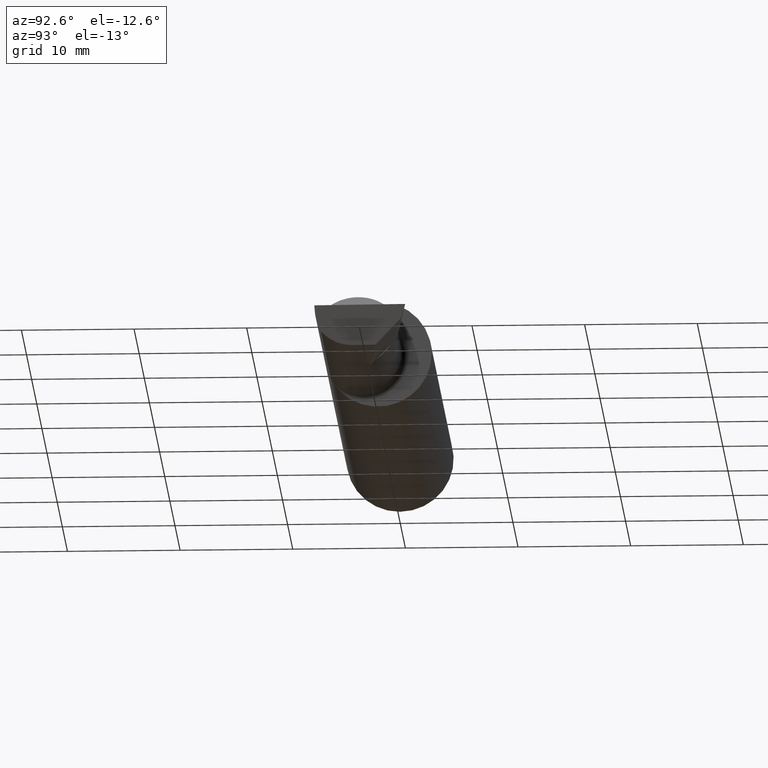
[diagram: clean part render]
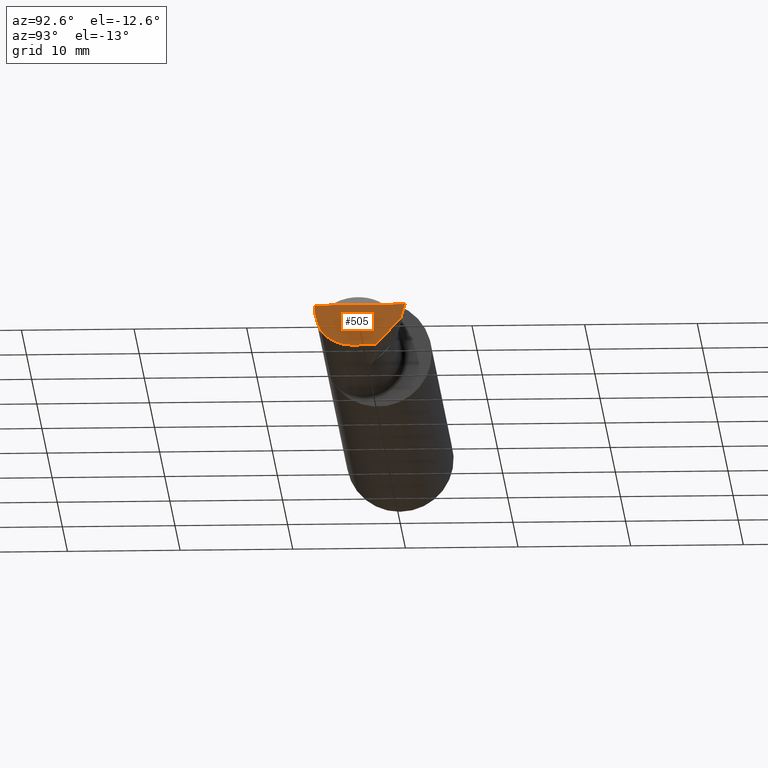
[diagram: same view with one face highlighted and labeled with its STEP entity id]
A machine part, auxiliary view. The second image highlights one B-rep face of the part: STEP entity #505.
In plain terms, the highlighted planar face has unit normal (-0.9922, 0.026, 0.1219).
Its self-contained STEP definition (entity closure, byte-faithful):
#19 = CARTESIAN_POINT ( 'NONE',  ( 2.477873865042410806, -0.05739999999999999963, -0.1400500000000000633 ) ) ;
#21 = LINE ( 'NONE', #313, #151 ) ;
#26 = CARTESIAN_POINT ( 'NONE',  ( 2.481080296960508580, -0.1635956445993030084, -0.09130436773856176469 ) ) ;
#27 =( BOUNDED_CURVE ( )  B_SPLINE_CURVE ( 3, ( #236, #46, #381, #570 ),
 .UNSPECIFIED., .F., .T. ) 
 B_SPLINE_CURVE_WITH_KNOTS ( ( 4, 4 ),
 ( 5.632580117768155148, 6.493234751459282528 ),
 .UNSPECIFIED. ) 
 CURVE ( )  GEOMETRIC_REPRESENTATION_ITEM ( )  RATIONAL_B_SPLINE_CURVE ( ( 1.000000000000000000, 0.9392195014330944058, 0.9392195014330944058, 1.000000000000000000 ) ) 
 REPRESENTATION_ITEM ( '' )  );
#37 = PLANE ( 'NONE',  #278 ) ;
#39 = FACE_OUTER_BOUND ( 'NONE', #269, .T. ) ;
#42 = EDGE_CURVE ( 'NONE', #275, #376, #399, .T. ) ;
#46 = CARTESIAN_POINT ( 'NONE',  ( 2.477925907309857401, -0.1365595166907235813, -0.1227499502647108609 ) ) ;
#77 = VECTOR ( 'NONE', #615, 39.37007874015748143 ) ;
#79 = CARTESIAN_POINT ( 'NONE',  ( 2.481080296960508580, -0.1635956445993030084, -0.09130436773856176469 ) ) ;
#94 = CARTESIAN_POINT ( 'NONE',  ( 2.487725449370724817, -0.1873500000000000443, -0.03213820089768506388 ) ) ;
#146 = DIRECTION ( 'NONE',  ( -0.9922060308645608284, 0.02598182930461468559, 0.1218693434050591162 ) ) ;
#151 = VECTOR ( 'NONE', #210, 39.37007874015748143 ) ;
#162 = CARTESIAN_POINT ( 'NONE',  ( 2.493766568580444432, 0.1168246249203733628, -0.04780233936830585728 ) ) ;
#202 = LINE ( 'NONE', #162, #287 ) ;
#205 = DIRECTION ( 'NONE',  ( 0.1053106618240634978, 0.6976485211320199165, 0.7086580314005359593 ) ) ;
#210 = DIRECTION ( 'NONE',  ( 0.1240019227988267692, 0.3022330132596589558, 0.9451342385281472636 ) ) ;
#217 = CARTESIAN_POINT ( 'NONE',  ( 2.491672876940991710, -0.1873499999999999888, 6.915950918908297591E-17 ) ) ;
#218 = CARTESIAN_POINT ( 'NONE',  ( 2.484117089522337452, -0.1792580844883771007, -0.06324101202936138755 ) ) ;
#236 = CARTESIAN_POINT ( 'NONE',  ( 2.481080296960508580, -0.1635956445993030084, -0.09130436773856176469 ) ) ;
#267 = EDGE_CURVE ( 'NONE', #627, #348, #202, .T. ) ;
#269 = EDGE_LOOP ( 'NONE', ( #576, #490, #279, #597, #521, #574 ) ) ;
#270 = DIRECTION ( 'NONE',  ( 0.02617694830779364323, 0.9996573249755593693, -2.665804247635780349E-18 ) ) ;
#275 = VERTEX_POINT ( 'NONE', #26 ) ;
#278 = AXIS2_PLACEMENT_3D ( 'NONE', #575, #146, #326 ) ;
#279 = ORIENTED_EDGE ( 'NONE', *, *, #267, .T. ) ;
#284 = VERTEX_POINT ( 'NONE', #19 ) ;
#287 = VECTOR ( 'NONE', #205, 39.37007874015748854 ) ;
#313 = CARTESIAN_POINT ( 'NONE',  ( 2.500188977433779769, 0.1311105994646662165, 0.001440373173041438384 ) ) ;
#314 = EDGE_CURVE ( 'NONE', #348, #474, #21, .T. ) ;
#326 = DIRECTION ( 'NONE',  ( 0.1219104985251942275, 0.000000000000000000, 0.9925410975618785825 ) ) ;
#329 = CARTESIAN_POINT ( 'NONE',  ( 2.477889026591898247, -0.05682100378451882677, -0.1400500000000000633 ) ) ;
#334 = CARTESIAN_POINT ( 'NONE',  ( 2.499999999999978684, 0.1306500000000237749, 8.405341369881224661E-14 ) ) ;
#348 = VERTEX_POINT ( 'NONE', #417 ) ;
#364 = EDGE_CURVE ( 'NONE', #376, #474, #457, .T. ) ;
#376 = VERTEX_POINT ( 'NONE', #217 ) ;
#381 = CARTESIAN_POINT ( 'NONE',  ( 2.476787929832031221, -0.09887019258091186980, -0.1400500000000000356 ) ) ;
#399 =( BOUNDED_CURVE ( )  B_SPLINE_CURVE ( 3, ( #79, #218, #94, #510 ),
 .UNSPECIFIED., .F., .F. ) 
 B_SPLINE_CURVE_WITH_KNOTS ( ( 4, 4 ),
 ( 0.8516985021657650368, 1.360746882515200484 ),
 .UNSPECIFIED. ) 
 CURVE ( )  GEOMETRIC_REPRESENTATION_ITEM ( )  RATIONAL_B_SPLINE_CURVE ( ( 1.000000000000000000, 0.9785221379938656705, 0.9785221379938656705, 1.000000000000000000 ) ) 
 REPRESENTATION_ITEM ( '' )  );
#411 = VECTOR ( 'NONE', #270, 39.37007874015748854 ) ;
#417 = CARTESIAN_POINT ( 'NONE',  ( 2.493439983562941720, 0.1146611065212078395, -0.04999999999999999584 ) ) ;
#425 = LINE ( 'NONE', #329, #77 ) ;
#447 = EDGE_CURVE ( 'NONE', #627, #284, #425, .T. ) ;
#457 = LINE ( 'NONE', #512, #411 ) ;
#474 = VERTEX_POINT ( 'NONE', #334 ) ;
#476 = EDGE_CURVE ( 'NONE', #275, #284, #27, .T. ) ;
#490 = ORIENTED_EDGE ( 'NONE', *, *, #447, .F. ) ;
#505 = ADVANCED_FACE ( 'NONE', ( #39 ), #37, .F. ) ;
#510 = CARTESIAN_POINT ( 'NONE',  ( 2.491672876940991710, -0.1873499999999999888, 6.915950918908297591E-17 ) ) ;
#512 = CARTESIAN_POINT ( 'NONE',  ( 2.490039159128059953, -0.2497391662021650194, 6.932588350567417155E-17 ) ) ;
#521 = ORIENTED_EDGE ( 'NONE', *, *, #364, .F. ) ;
#570 = CARTESIAN_POINT ( 'NONE',  ( 2.477873865042410806, -0.05739999999999999963, -0.1400500000000000633 ) ) ;
#574 = ORIENTED_EDGE ( 'NONE', *, *, #42, .F. ) ;
#575 = CARTESIAN_POINT ( 'NONE',  ( 2.475850273311264615, -0.1244607267090816621, -0.1422282308645907711 ) ) ;
#576 = ORIENTED_EDGE ( 'NONE', *, *, #476, .T. ) ;
#587 = CARTESIAN_POINT ( 'NONE',  ( 2.480058035321255794, 0.02601009779168069955, -0.1400500000000000633 ) ) ;
#597 = ORIENTED_EDGE ( 'NONE', *, *, #314, .T. ) ;
#615 = DIRECTION ( 'NONE',  ( -0.02617694830779365364, -0.9996573249755593693, -8.535148296544462419E-17 ) ) ;
#627 = VERTEX_POINT ( 'NONE', #587 ) ;